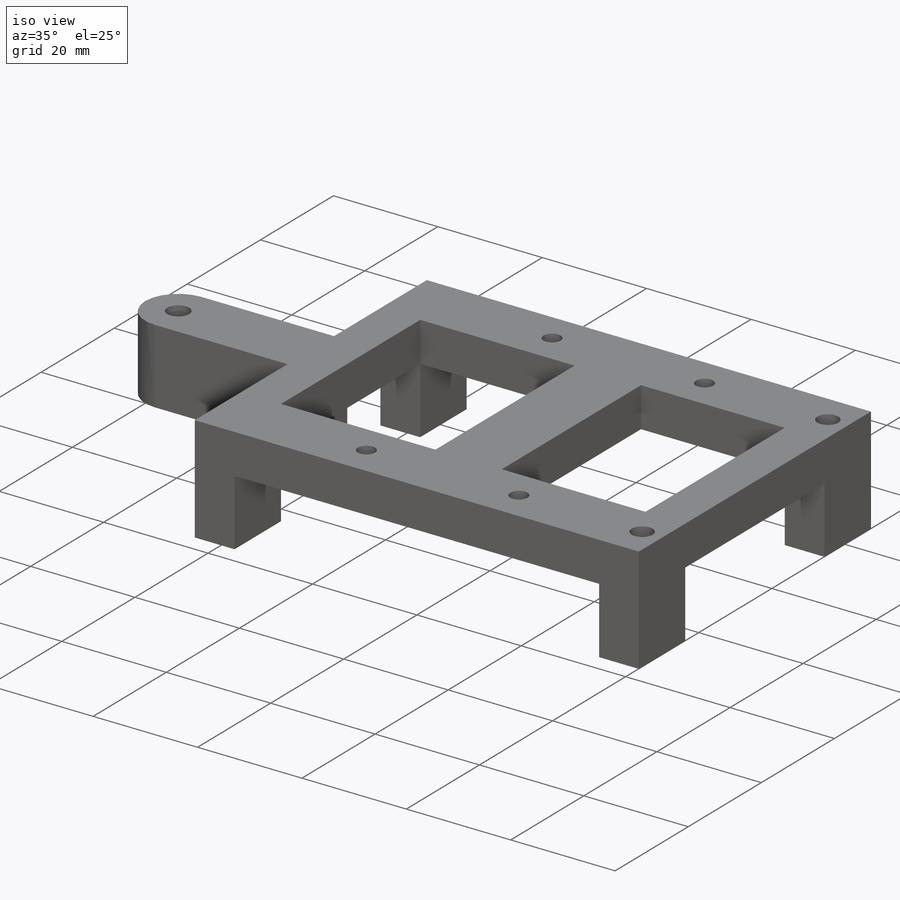
[diagram: iso view]
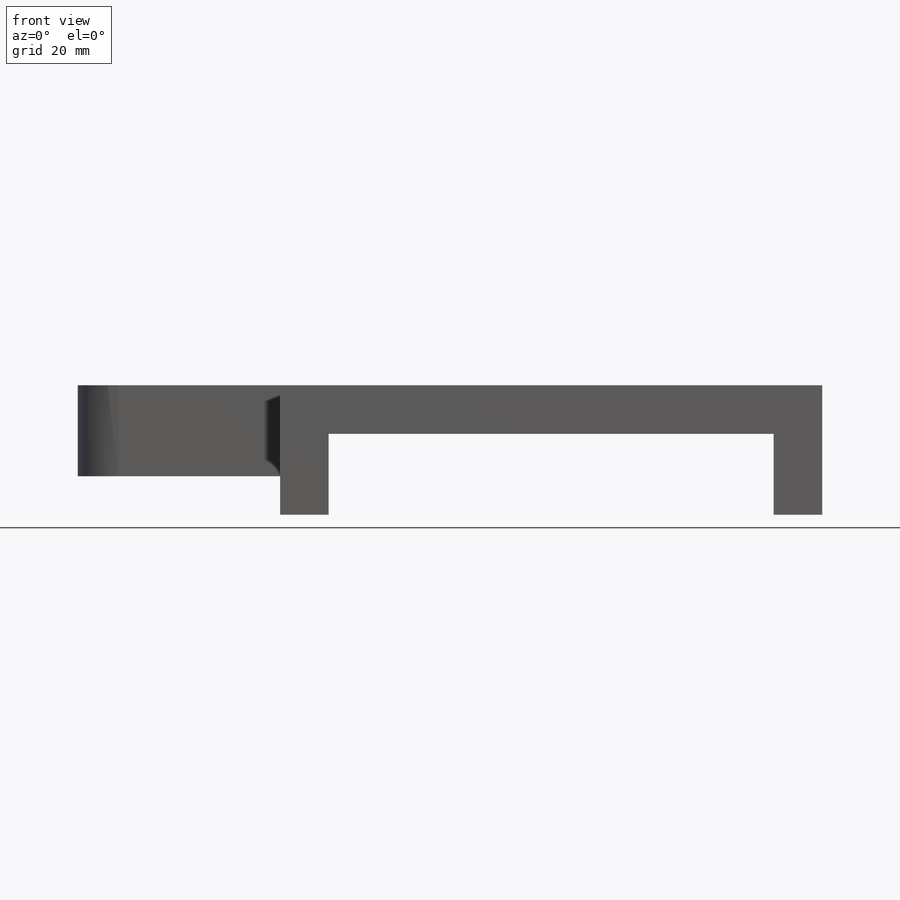
[diagram: front view]
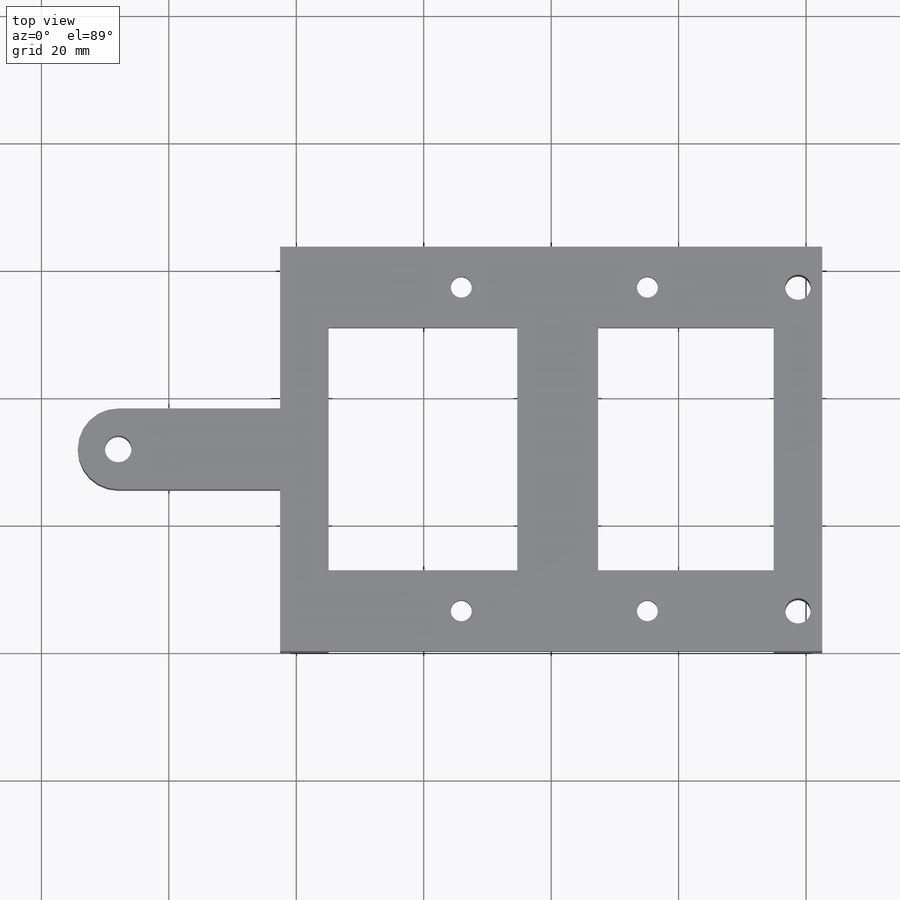
[diagram: top view]
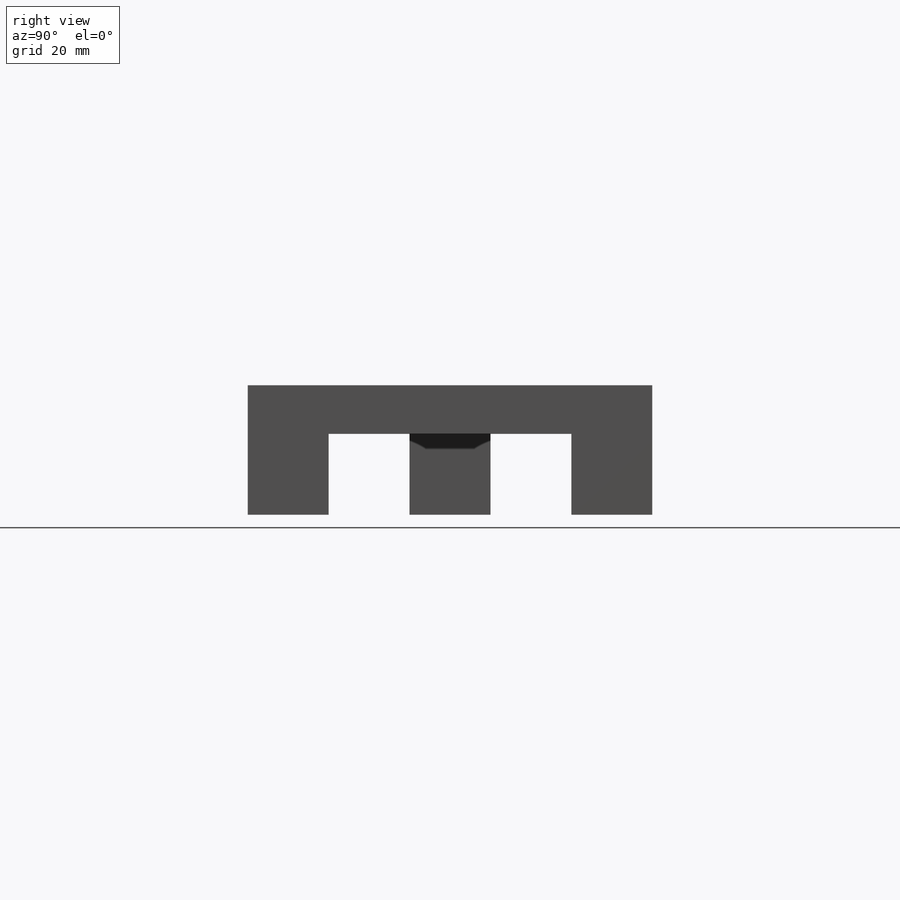
[diagram: right view]
SOLIDWORKS PART (.sldprt)
format: sldprt  version: not decoded by parser v0  size: 898,560 bytes
history: native  units: mm
features: sketch x15, extrude x7, thread x4, cut_extrude x3, material x1, revolve x1, hole x1 (+12 scaffold rows collapsed)
feature tree (44):
  scaffold x12  (default folders/planes/origin — collapsed)
  material  "Material <not specified>"
  sketch  "Sketch1"  dims[c1.D1=69.85mm c1.D2=25.4mm c1.D4=2.54mm c1.D3=7.62mm c2.D4=6.35mm c2.D3=2.54mm]
  extrude  "Boss-Extrude1"  Depth=12.7mm
  sketch  "Sketch2"  dims[D1=7.62mm D2=12.7mm D3=7.62mm]
  extrude  "Boss-Extrude2"  Depth=38.1mm
  sketch  "Sketch4"
  extrude  "Boss-Extrude3"  Depth=12.7mm
  sketch  "Sketch5"  dims[D1=3.9878mm D2=3.9878mm D3=4.572mm]
  sketch  "Sketch6"  dims[D1=12.7mm D2=12.7mm]
  extrude  "Boss-Extrude4"  Depth=2.54mm
  sketch  "Sketch7"  dims[c1.D1=5.08mm c1.D2=5.08mm c1.D3=7.112mm c2.D1=5.08mm c2.D2=12.7mm]
  extrude  "Boss-Extrude5"  Depth=25.4mm
  sketch  "Sketch8"  dims[D1=5.08mm D2=5.08mm]
  revolve  "Revolve2"  Angle=180deg
  sketch  "Sketch10"  dims[D1=4.191mm]
  cut_extrude  "Cut-Extrude4"  [1 undecoded]
  hole  "M4x0.7 Tapped Hole1"  Diameter=3.3mm Depth=40.64mm
  sketch  "Sketch16"
  sketch  "Sketch15"  dims[hole-wizard template sketch: 60 standard entries collapsed; hole parameters kept: c18.Thru Tap Drill Depth=40.64mm]
  thread  "Hole Thread1"  Diameter=4mm  [1 undecoded]
  thread  "Hole Thread2"  Diameter=4mm  [1 undecoded]
  thread  "Hole Thread3"  Diameter=4mm  [1 undecoded]
  thread  "Hole Thread4"  Diameter=4mm  [1 undecoded]
  sketch  "Sketch17"
  extrude  "Boss-Extrude6"  [1 undecoded]
  sketch  "Sketch18"
  extrude  "Boss-Extrude7"  Depth=6.35mm
  sketch  "Sketch19"
  sketch  "Sketch24"
  cut_extrude  "Cut-Extrude9"  [1 undecoded]
  sketch  "Sketch25"  dims[D1=4.0mm D2=4.0mm]
  cut_extrude  "Cut-Extrude10"  [1 undecoded]
decode coverage: 21 of 31 modeling features carry decoded parameters
note: ~ marks probable driven/reference dimensions
note: 8 parameter values undecoded
summary: no parameter record found for 4 features
note: suppression state not decoded; provenance and decode notes live in map.json
